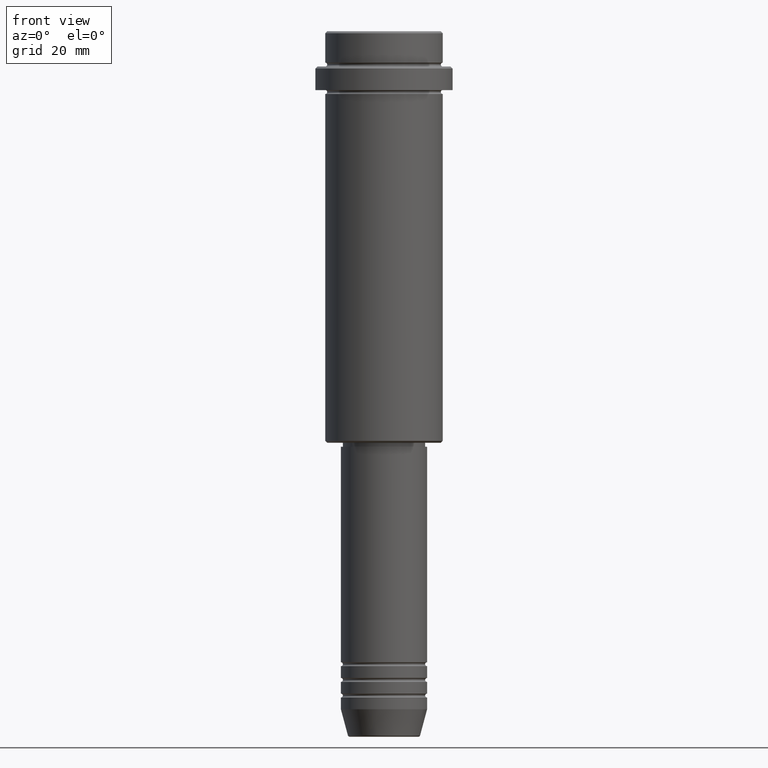
[diagram: clean part render]
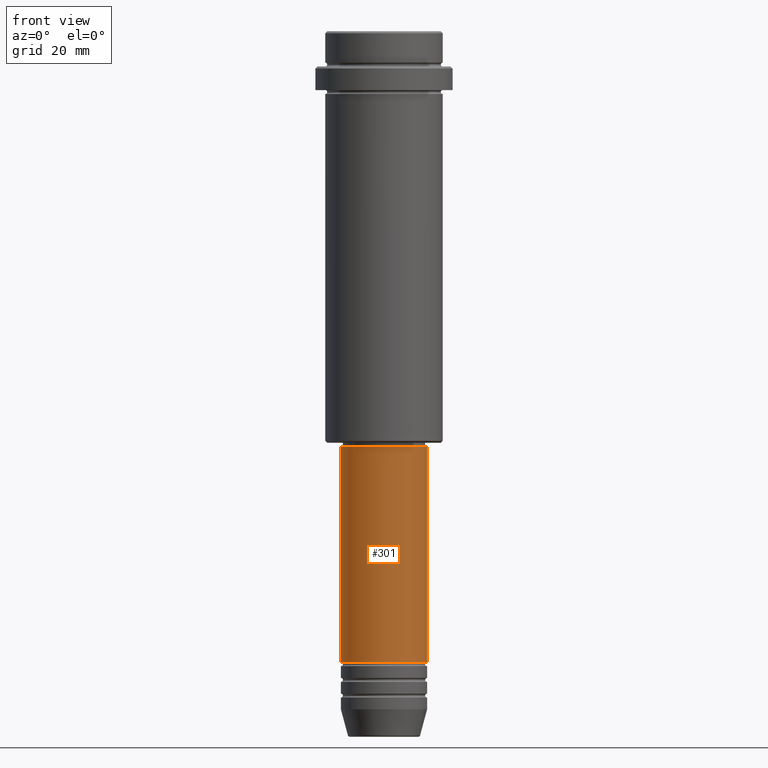
[diagram: same view with one face highlighted and labeled with its STEP entity id]
A machine part, front view. The second image highlights one B-rep face of the part: STEP entity #301.
In plain terms, the highlighted cylindrical surface (partial cylindrical patch) has radius 11 mm, axis along (-0, -0, 1).
Its self-contained STEP definition (entity closure, byte-faithful):
#18 = FACE_OUTER_BOUND ( 'NONE', #164, .T. ) ;
#50 = DIRECTION ( 'NONE',  ( -0.000000000000000000, -0.000000000000000000, 1.000000000000000000 ) ) ;
#119 = CYLINDRICAL_SURFACE ( 'NONE', #845, 11.00000000000000000 ) ;
#130 = CARTESIAN_POINT ( 'NONE',  ( 0.000000000000000000, 0.000000000000000000, 0.000000000000000000 ) ) ;
#136 = DIRECTION ( 'NONE',  ( -0.000000000000000000, -0.000000000000000000, 1.000000000000000000 ) ) ;
#158 = ORIENTED_EDGE ( 'NONE', *, *, #514, .F. ) ;
#164 = EDGE_LOOP ( 'NONE', ( #158, #1209, #431, #190 ) ) ;
#176 = VERTEX_POINT ( 'NONE', #394 ) ;
#190 = ORIENTED_EDGE ( 'NONE', *, *, #784, .F. ) ;
#230 = DIRECTION ( 'NONE',  ( -0.000000000000000000, -0.000000000000000000, 1.000000000000000000 ) ) ;
#235 = VECTOR ( 'NONE', #379, 1000.000000000000000 ) ;
#241 = DIRECTION ( 'NONE',  ( 1.000000000000000000, 0.000000000000000000, 0.000000000000000000 ) ) ;
#246 = VERTEX_POINT ( 'NONE', #1207 ) ;
#301 = ADVANCED_FACE ( 'NONE', ( #18 ), #119, .T. ) ;
#370 = DIRECTION ( 'NONE',  ( 1.000000000000000000, 0.000000000000000000, 0.000000000000000000 ) ) ;
#379 = DIRECTION ( 'NONE',  ( -0.000000000000000000, -0.000000000000000000, 1.000000000000000000 ) ) ;
#385 = DIRECTION ( 'NONE',  ( 1.000000000000000000, 0.000000000000000000, 0.000000000000000000 ) ) ;
#394 = CARTESIAN_POINT ( 'NONE',  ( -10.99999999999999822, 1.347111479062088207E-15, -106.0000000000000142 ) ) ;
#408 = EDGE_CURVE ( 'NONE', #985, #1030, #1253, .T. ) ;
#431 = ORIENTED_EDGE ( 'NONE', *, *, #1145, .T. ) ;
#458 = LINE ( 'NONE', #1225, #646 ) ;
#464 = CARTESIAN_POINT ( 'NONE',  ( 0.000000000000000000, 0.000000000000000000, -106.0000000000000142 ) ) ;
#495 = CARTESIAN_POINT ( 'NONE',  ( -11.00000000000000000, 1.347111479062088405E-15, -160.9999999999999147 ) ) ;
#514 = EDGE_CURVE ( 'NONE', #985, #176, #930, .T. ) ;
#572 = CIRCLE ( 'NONE', #950, 10.99999999999999822 ) ;
#596 = CARTESIAN_POINT ( 'NONE',  ( 0.000000000000000000, 0.000000000000000000, -160.9999999999999147 ) ) ;
#646 = VECTOR ( 'NONE', #230, 1000.000000000000000 ) ;
#715 = CARTESIAN_POINT ( 'NONE',  ( 11.00000000000000000, 0.000000000000000000, -160.9999999999999147 ) ) ;
#784 = EDGE_CURVE ( 'NONE', #176, #246, #572, .T. ) ;
#845 = AXIS2_PLACEMENT_3D ( 'NONE', #130, #136, #241 ) ;
#877 = AXIS2_PLACEMENT_3D ( 'NONE', #596, #50, #385 ) ;
#905 = DIRECTION ( 'NONE',  ( -0.000000000000000000, -0.000000000000000000, 1.000000000000000000 ) ) ;
#930 = LINE ( 'NONE', #1353, #235 ) ;
#950 = AXIS2_PLACEMENT_3D ( 'NONE', #464, #905, #370 ) ;
#985 = VERTEX_POINT ( 'NONE', #495 ) ;
#1030 = VERTEX_POINT ( 'NONE', #715 ) ;
#1145 = EDGE_CURVE ( 'NONE', #1030, #246, #458, .T. ) ;
#1207 = CARTESIAN_POINT ( 'NONE',  ( 10.99999999999999822, 0.000000000000000000, -106.0000000000000142 ) ) ;
#1209 = ORIENTED_EDGE ( 'NONE', *, *, #408, .T. ) ;
#1225 = CARTESIAN_POINT ( 'NONE',  ( 11.00000000000000000, 0.000000000000000000, 0.000000000000000000 ) ) ;
#1253 = CIRCLE ( 'NONE', #877, 11.00000000000000000 ) ;
#1353 = CARTESIAN_POINT ( 'NONE',  ( -11.00000000000000000, 1.347111479062088405E-15, 0.000000000000000000 ) ) ;